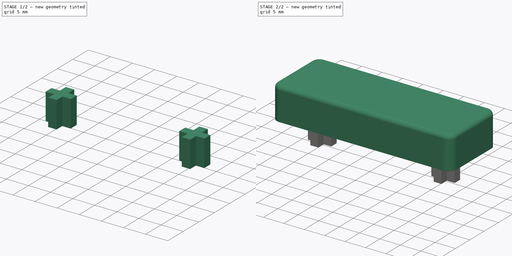
[diagram: build sequence overview — one tinted view per stage of 2, left to right]
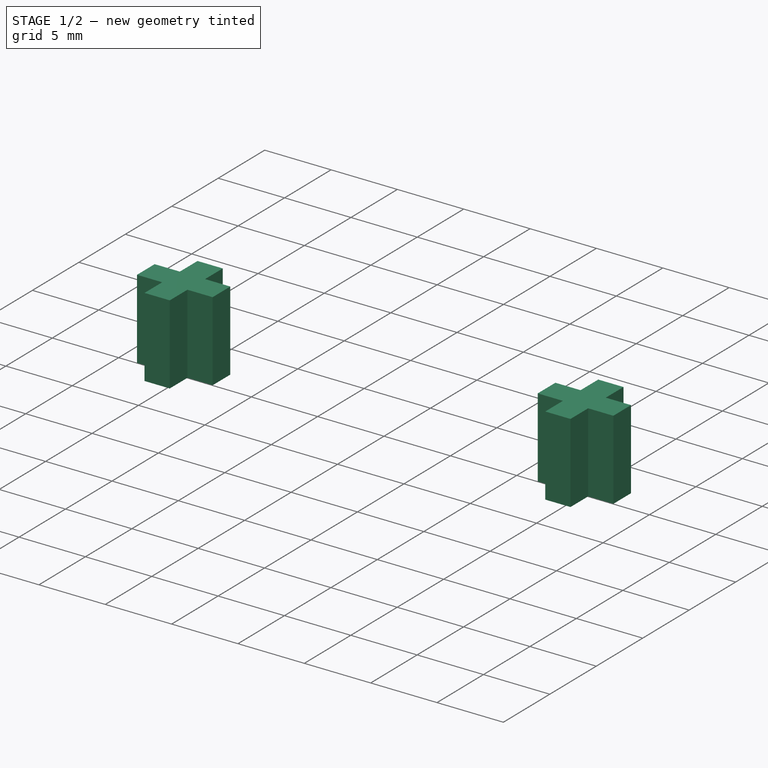
[diagram: stage 1 of 2 — iso view after this stage's code; geometry added in this stage tinted green]
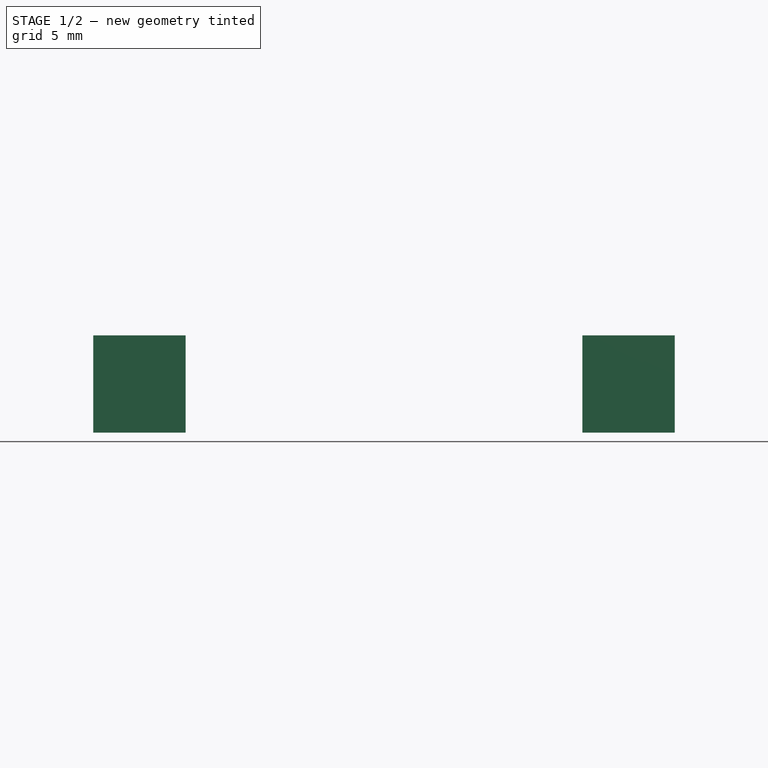
[diagram: stage 1 of 2 — front view after this stage's code; geometry added in this stage tinted green]
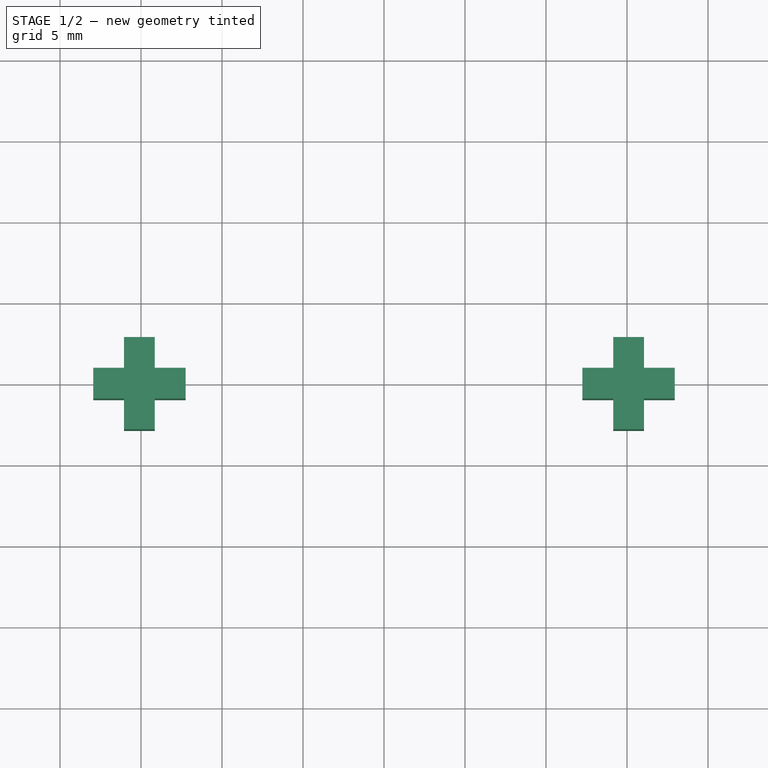
[diagram: stage 1 of 2 — top view after this stage's code; geometry added in this stage tinted green]
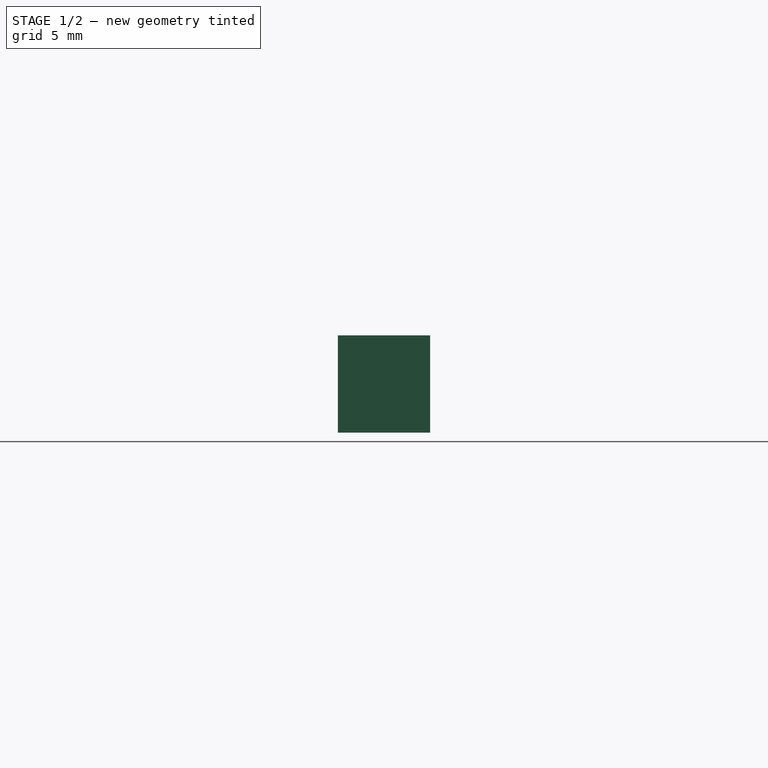
[diagram: stage 1 of 2 — right view after this stage's code; geometry added in this stage tinted green]
FCSTD DOCUMENT  (FreeCAD 0.20R29177 +426 (Git))
Label: toilet_lid_spacer_44x16x8mm
License: Creative Commons Attribution
LicenseURL: http://creativecommons.org/licenses/by/3.0/
objects: Sketcher::SketchObject×3, Part::Extrusion×3, App::Part×1, Part::Fillet×1
note: 7 computed .brp shape members not serialized (recipe doc carries the construction recipe); baked Part::Feature solids carry a one-line shape summary decoded from their .brp

FEATURE [Sketcher::SketchObject] Sketch001
  FullyConstrained = true
  expr: Constraints[32] = 5.7 / 3
  expr: Constraints[34] = 24.5 / 2
  sketch-geometry (12):
    g0: LineSegment StartX=-17.95 StartY=0.949994 StartZ=0 EndX=-16.05 EndY=0.949994 EndZ=0
    g1: LineSegment StartX=-16.05 StartY=0.949994 StartZ=0 EndX=-16.05 EndY=2.84999 EndZ=0
    g2: LineSegment StartX=-16.05 StartY=2.84999 StartZ=0 EndX=-14.15 EndY=2.84999 EndZ=0
    g3: LineSegment StartX=-14.15 StartY=2.84999 StartZ=0 EndX=-14.15 EndY=0.949994 EndZ=0
    g4: LineSegment StartX=-14.15 StartY=0.949994 StartZ=0 EndX=-12.25 EndY=0.950006 EndZ=0
    g5: LineSegment StartX=-12.25 StartY=0.950006 StartZ=0 EndX=-12.25 EndY=-0.949994 EndZ=0
    g6: LineSegment StartX=-12.25 StartY=-0.949994 StartZ=0 EndX=-14.15 EndY=-0.949994 EndZ=0
    g7: LineSegment StartX=-14.15 StartY=-0.949994 StartZ=0 EndX=-14.15 EndY=-2.84999 EndZ=0
    g8: LineSegment StartX=-14.15 StartY=-2.84999 StartZ=0 EndX=-16.05 EndY=-2.85001 EndZ=0
    g9: LineSegment StartX=-16.05 StartY=-2.85001 StartZ=0 EndX=-16.05 EndY=-0.950006 EndZ=0
    g10: LineSegment StartX=-16.05 StartY=-0.950006 StartZ=0 EndX=-17.95 EndY=-0.950006 EndZ=0
    g11: LineSegment StartX=-17.95 StartY=-0.950006 StartZ=0 EndX=-17.95 EndY=0.949994 EndZ=0
  constraints (27):
    c: Horizontal(g0)
    c: Coincident(g0,g1)
    c: Vertical(g1)
    c: Coincident(g1,g2)
    c: Horizontal(g2)
    c: Coincident(g2,g3)
    c: Vertical(g3)
    c: Coincident(g3,g4)
    c: Coincident(g4,g5)
    c: Vertical(g5)
    c: Coincident(g5,g6)
    c: Horizontal(g6)
    c: Coincident(g6,g7)
    c: Vertical(g7)
    c: Coincident(g7,g8)
    c: Coincident(g8,g9)
    c: Vertical(g9)
    c: Coincident(g9,g10)
    c: Coincident(g10,g11)
    c: Coincident(g11,g0)
    c: Equal(g2,g1)
    c: Equal(g2, g3-g11) x9
    c: Equal(g2,g0)
    c: Horizontal(g10)
    c: DistanceX(g2,g2) = 1.9
    c: Symmetric(g3,g6,g-1)
    c: DistanceX(g4,g-1) = 12.25
FEATURE [Sketcher::SketchObject] MirroredSketch
  FullyConstrained = false
  sketch-geometry (12):
    g0: LineSegment StartX=17.95 StartY=0.949994 StartZ=0 EndX=16.05 EndY=0.949994 EndZ=0
    g1: LineSegment StartX=16.05 StartY=0.949994 StartZ=0 EndX=16.05 EndY=2.84999 EndZ=0
    g2: LineSegment StartX=16.05 StartY=2.84999 StartZ=0 EndX=14.15 EndY=2.84999 EndZ=0
    g3: LineSegment StartX=14.15 StartY=2.84999 StartZ=0 EndX=14.15 EndY=0.949994 EndZ=0
    g4: LineSegment StartX=14.15 StartY=0.949994 StartZ=0 EndX=12.25 EndY=0.950006 EndZ=0
    g5: LineSegment StartX=12.25 StartY=0.950006 StartZ=0 EndX=12.25 EndY=-0.949994 EndZ=0
    g6: LineSegment StartX=12.25 StartY=-0.949994 StartZ=0 EndX=14.15 EndY=-0.949994 EndZ=0
    g7: LineSegment StartX=14.15 StartY=-0.949994 StartZ=0 EndX=14.15 EndY=-2.84999 EndZ=0
    g8: LineSegment StartX=14.15 StartY=-2.84999 StartZ=0 EndX=16.05 EndY=-2.85001 EndZ=0
    g9: LineSegment StartX=16.05 StartY=-2.85001 StartZ=0 EndX=16.05 EndY=-0.950006 EndZ=0
    g10: LineSegment StartX=16.05 StartY=-0.950006 StartZ=0 EndX=17.95 EndY=-0.950006 EndZ=0
    g11: LineSegment StartX=17.95 StartY=-0.950006 StartZ=0 EndX=17.95 EndY=0.949994 EndZ=0
  constraints (24):
    c: Horizontal(g0)
    c: Coincident(g0,g1)
    c: Vertical(g1)
    c: Coincident(g1,g2)
    c: Horizontal(g2)
    c: Coincident(g2,g3)
    c: Vertical(g3)
    c: Coincident(g3,g4)
    c: Coincident(g4,g5)
    c: Vertical(g5)
    c: Coincident(g5,g6)
    c: Horizontal(g6)
    c: Coincident(g6,g7)
    c: Vertical(g7)
    c: Coincident(g7,g8)
    c: Coincident(g8,g9)
    c: Vertical(g9)
    c: Coincident(g9,g10)
    c: Coincident(g10,g11)
    c: Coincident(g11,g0)
    c: Equal(g2,g1)
    c: Equal(g2, g3-g11) x9
    c: Equal(g2,g0)
    c: Horizontal(g10)
FEATURE [Part::Extrusion] Extrude001
  Base = -> Sketch001
  Dir = (0,0,1)
  DirMode = 2
  FaceMakerClass = Part::FaceMakerBullseye
  LengthFwd = 6
  LengthRev = 0
  Reversed = true
  Solid = true
  Symmetric = false
FEATURE [Part::Extrusion] Extrude002
  Base = -> MirroredSketch
  Dir = (0,0,1)
  DirMode = 2
  FaceMakerClass = Part::FaceMakerBullseye
  LengthFwd = 6
  LengthRev = 0
  Reversed = true
  Solid = true
  Symmetric = false
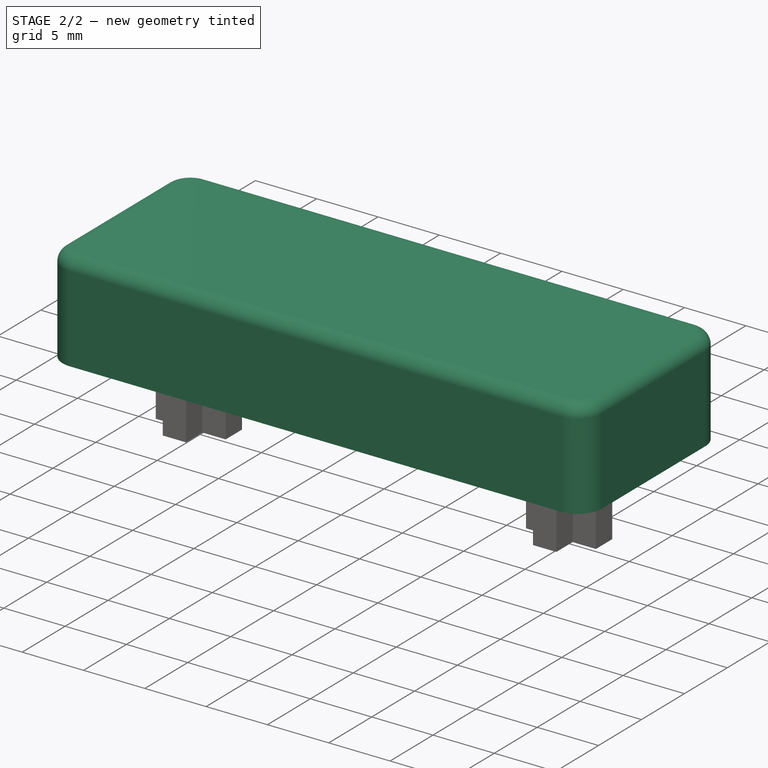
[diagram: stage 2 of 2 — iso view after this stage's code; geometry added in this stage tinted green]
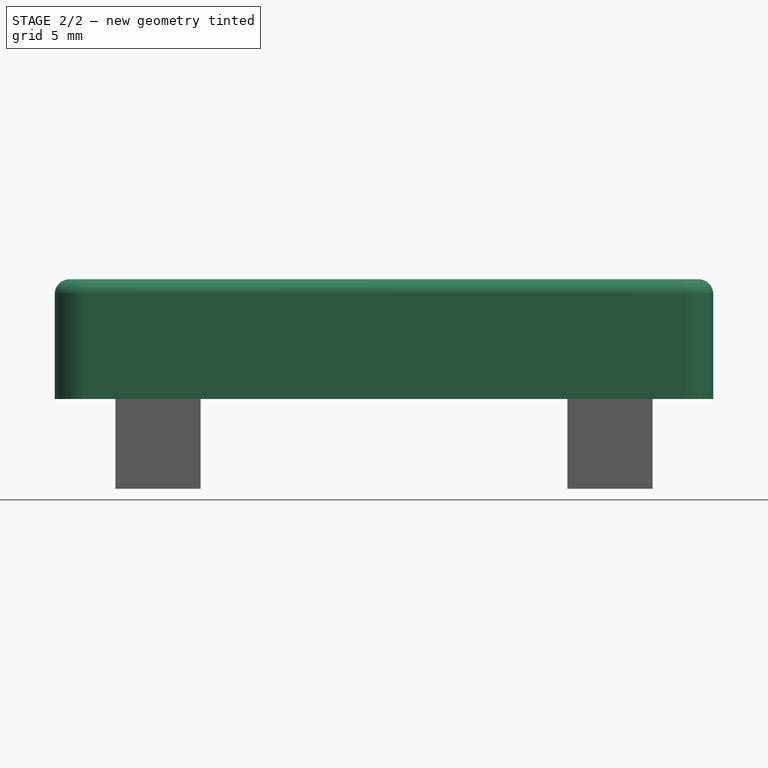
[diagram: stage 2 of 2 — front view after this stage's code; geometry added in this stage tinted green]
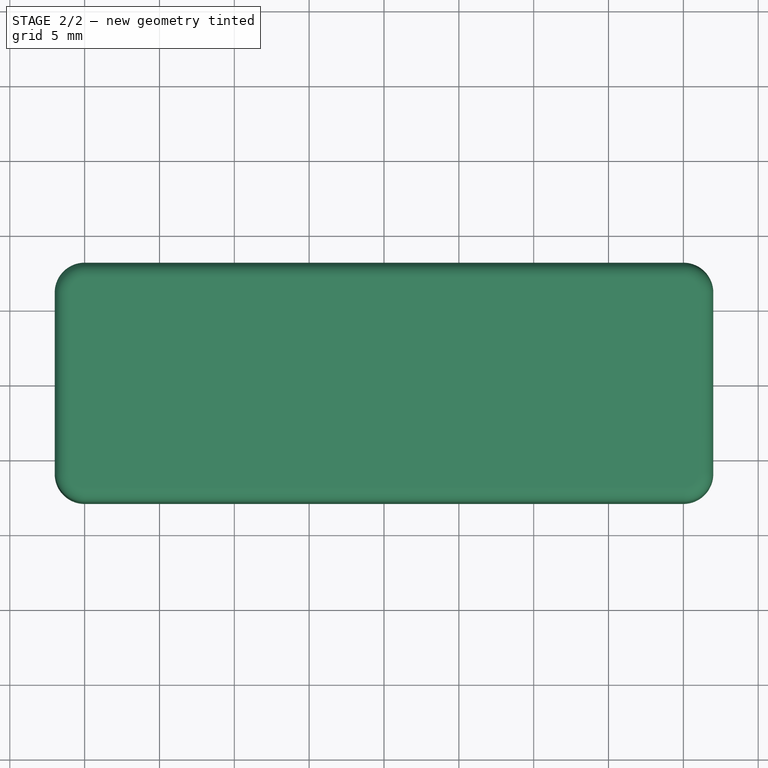
[diagram: stage 2 of 2 — top view after this stage's code; geometry added in this stage tinted green]
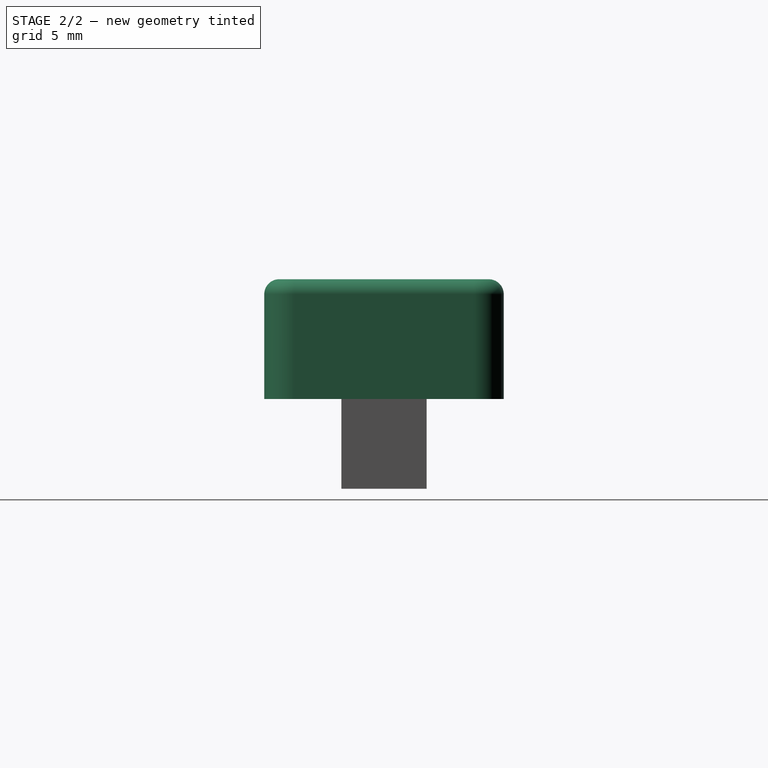
[diagram: stage 2 of 2 — right view after this stage's code; geometry added in this stage tinted green]
FEATURE [App::Part] Part
  Origin = -> Origin
FEATURE [Sketcher::SketchObject] Sketch
  FullyConstrained = true
  sketch-geometry (9):
    g0: LineSegment StartX=-20 StartY=8 StartZ=0 EndX=20 EndY=8 EndZ=0
    g1: LineSegment StartX=22 StartY=6 StartZ=0 EndX=22 EndY=-6 EndZ=0
    g2: LineSegment StartX=20 StartY=-8 StartZ=0 EndX=-20 EndY=-8 EndZ=0
    g3: LineSegment StartX=-22 StartY=-6 StartZ=0 EndX=-22 EndY=6 EndZ=0
    g4: ArcOfCircle CenterX=-20 CenterY=6 CenterZ=0 NormalX=0 NormalY=0 NormalZ=1 AngleXU=0 Radius=2 StartAngle=1.5708 EndAngle=3.14159
    g5: GeomPoint X=-22 Y=8 Z=0
    g6: ArcOfCircle CenterX=-20 CenterY=-6 CenterZ=0 NormalX=0 NormalY=0 NormalZ=1 AngleXU=0 Radius=2 StartAngle=3.14159 EndAngle=4.71239
    g7: ArcOfCircle CenterX=20 CenterY=6 CenterZ=0 NormalX=0 NormalY=0 NormalZ=1 AngleXU=0 Radius=2 StartAngle=3e-16 EndAngle=1.5708
    g8: ArcOfCircle CenterX=20 CenterY=-6 CenterZ=0 NormalX=0 NormalY=0 NormalZ=1 AngleXU=0 Radius=2 StartAngle=4.71239 EndAngle=6.28319
  constraints (20):
    c: PointOnObject(g5,g0)
    c: PointOnObject(g5,g3)
    c: Tangent(g0,g4) = 1.5708
    c: Tangent(g3,g4) = 1.5708
    c: Tangent(g3,g6) = 1.5708
    c: Tangent(g2,g6) = 1.5708
    c: Tangent(g0,g7) = 1.5708
    c: Tangent(g1,g7) = 1.5708
    c: Tangent(g2,g8) = 1.5708
    c: Tangent(g1,g8) = 1.5708
    c: DistanceX(g3,g1) = 44
    c: DistanceY(g2,g0) = 16
    c: Radius(g4) = 2
    c: Equal(g4,g7)
    c: Equal(g6,g4)
    c: Equal(g4,g8)
    c: Horizontal(g0)
    c: Symmetric(g2,g0,g-1)
    c: Symmetric(g3,g1,g-2)
    c: Angle(g4) = 1.5708
FEATURE [Part::Extrusion] Extrude
  Base = -> Sketch
  Dir = (0,0,1)
  DirMode = 2
  FaceMakerClass = Part::FaceMakerBullseye
  LengthFwd = 8
  LengthRev = 0
  Solid = true
  Symmetric = false
FEATURE [Part::Fillet] Fillet
  Base = -> Extrude
  Edges = 8 edges r=1: [Edge4,Edge7,Edge10,Edge13,Edge16,Edge19,Edge22,Edge24]
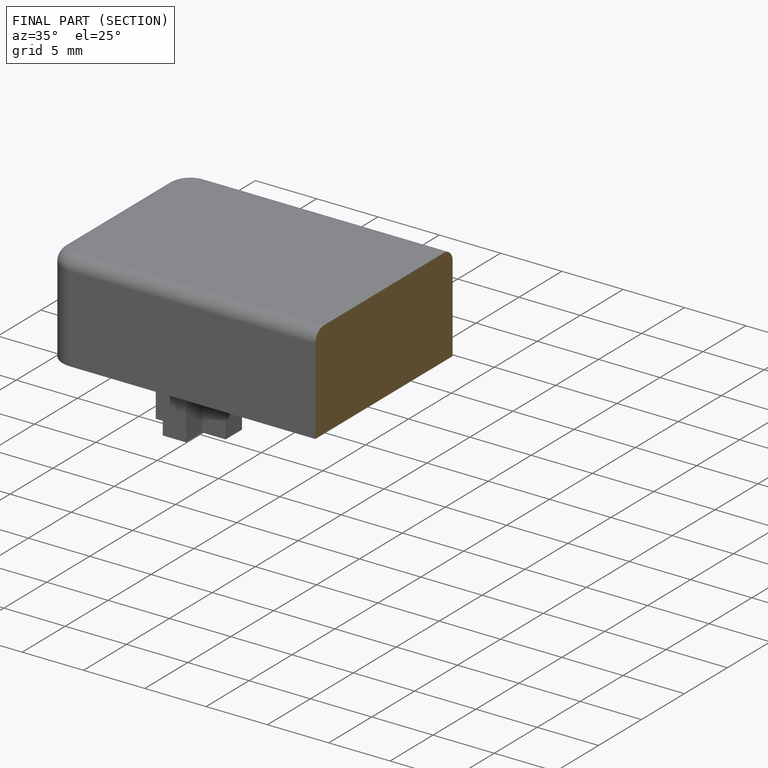
[diagram: finished part — half-section view (interior)]
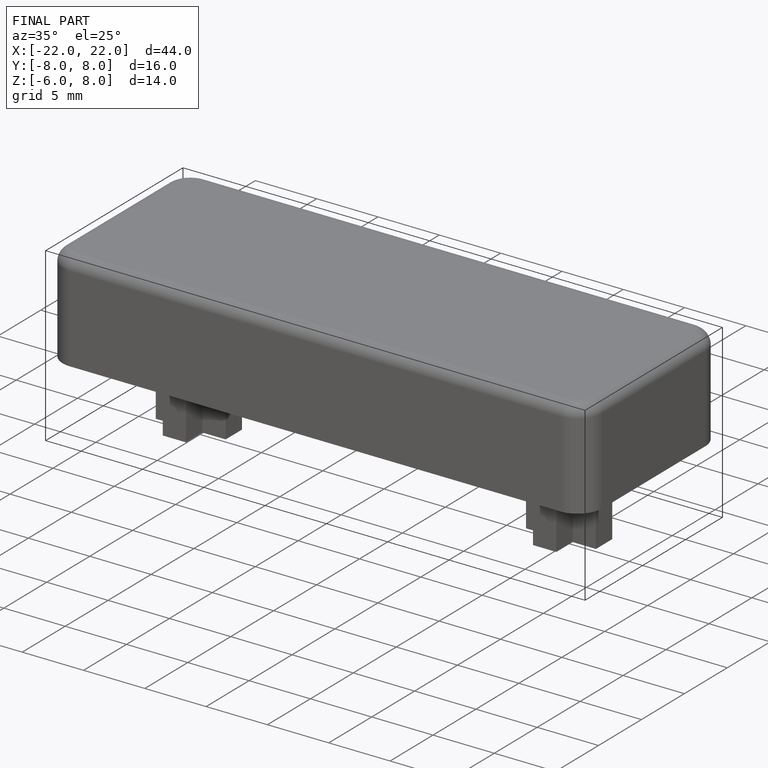
[diagram: finished part — iso view with bounding-box wireframe]
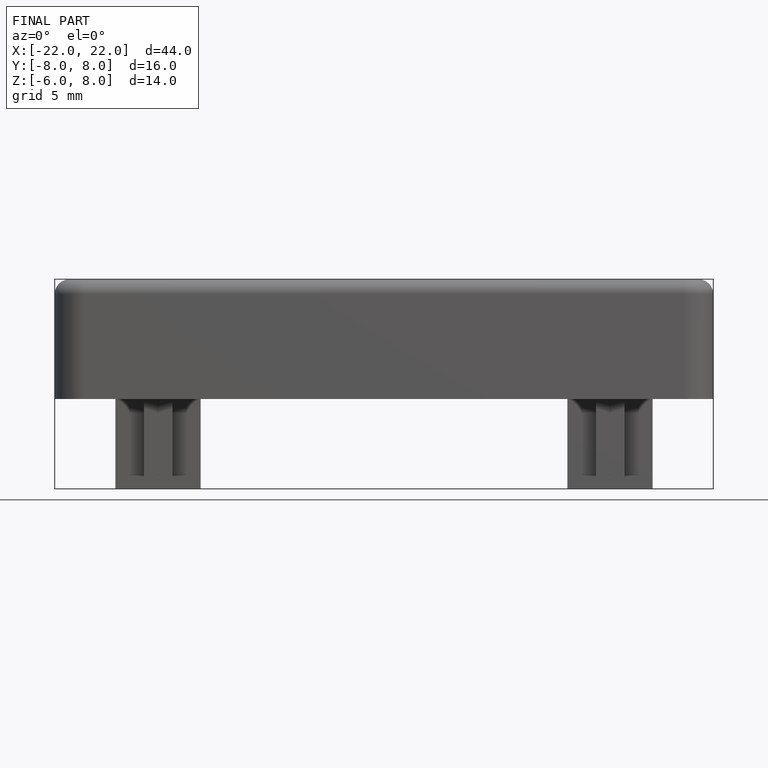
[diagram: finished part — front view with bounding-box wireframe]
